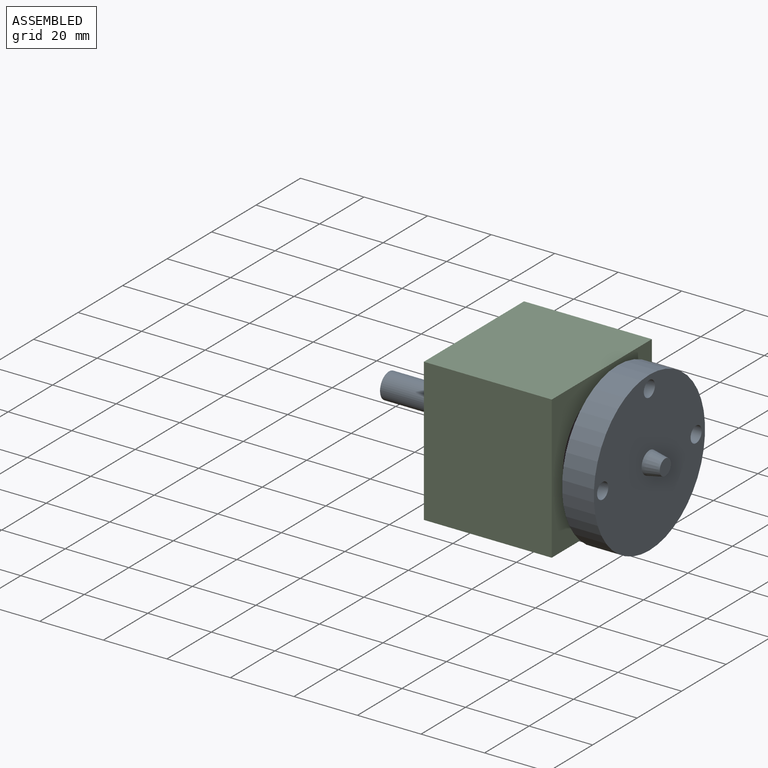
[diagram: assembled view]
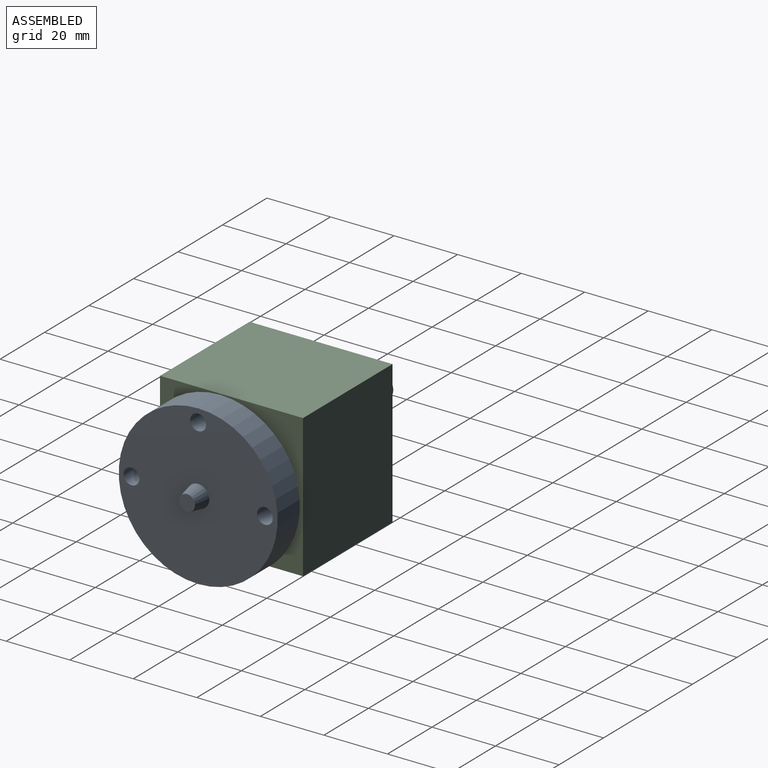
[diagram: assembled view, second angle]
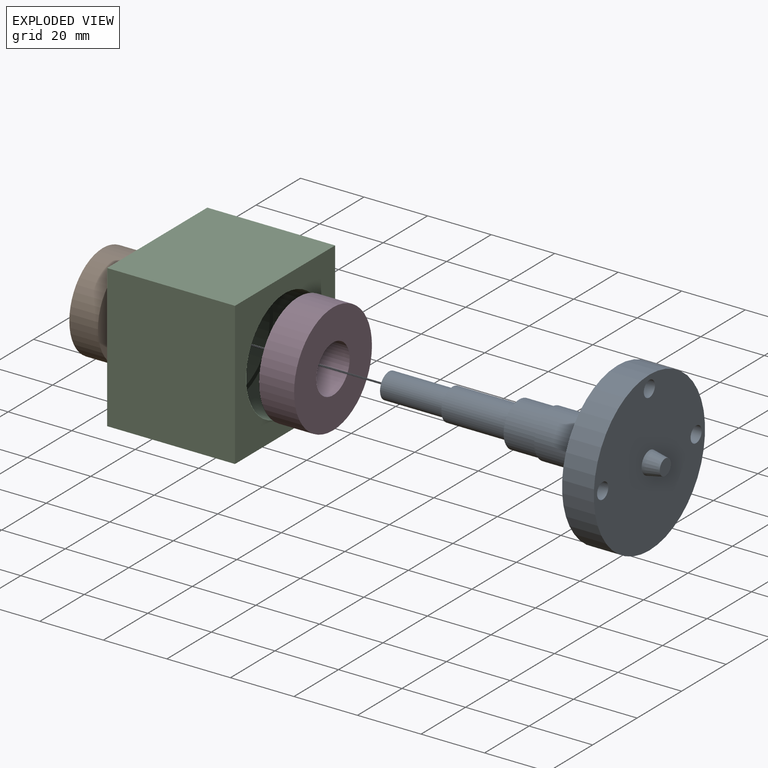
[diagram: exploded view]
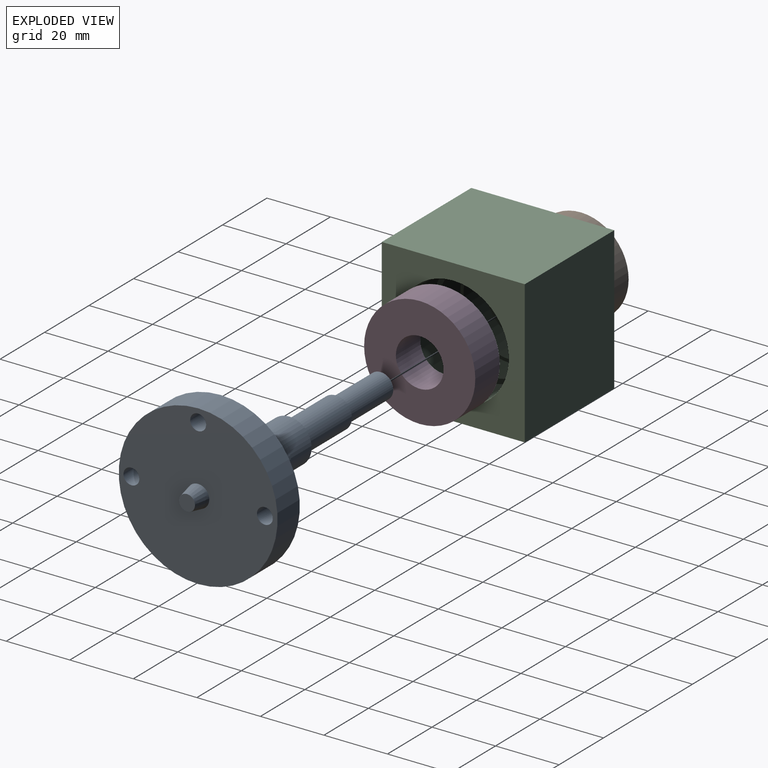
[diagram: exploded view, second angle]
ASSEMBLY  parts=4 mates=3
PART A: 18 faces, bbox 87x50x50 mm
  f0: plane 5x5mm, normal (1,0,0), area 19.6mm2, adj f1
  f1: cone r=3.5mm half-angle=11.3deg, axis (-1,0,0), area 96.1mm2, adj f0,f2
  f2: plane 50x50mm, normal (1,0,0), area 1866.1mm2, adj f1,f3,f15,f16,f17
  f3: cylinder r=25mm len=50mm, axis (-1,0,0), area 1570.8mm2, adj f2,f4
  f4: plane 50x50mm, normal (-1,0,0), area 1677.6mm2, adj f3,f5,f15,f16,f17
  f5: cylinder r=8.5mm len=17mm, axis (-1,0,0), area 534.1mm2, adj f4,f6
  f6: plane 17x17mm, normal (-1,0,0), area 50.3mm2, adj f5,f7
  f7: cylinder r=7.5mm len=15mm, axis (-1,0,0), area 518.4mm2, adj f6,f8
  f8: plane 15x15mm, normal (-1,0,0), area 22.8mm2, adj f7,f9
  f9: cylinder r=7mm len=14mm, axis (-1,0,0), area 439.8mm2, adj f8,f10
  f10: plane 14x14mm, normal (-1,0,0), area 75.4mm2, adj f9,f11
  f11: cylinder r=5mm len=21mm, axis (-1,0,0), area 659.7mm2, adj f10,f12
  f12: plane 10x10mm, normal (-1,0,0), area 28.3mm2, adj f11,f13
  f13: cylinder r=4mm len=20mm, axis (-1,0,0), area 502.7mm2, adj f12,f14
  f14: plane 8x8mm, normal (-1,0,0), area 50.3mm2, adj f13
  f15: cylinder r=2.5mm len=10mm, axis (1,0,0), area 157.1mm2, adj f2,f4
  f16: cylinder r=2.5mm len=10mm, axis (1,0,0), area 157.1mm2, adj f2,f4
  f17: cylinder r=2.5mm len=10mm, axis (1,0,0), area 157.1mm2, adj f2,f4
PART B: 4 faces, bbox 30x9x30 mm
  f0: cylinder r=5mm len=10mm, axis (0,1,0), area 282.7mm2, adj f2,f3
  f1: cylinder r=15mm len=30mm, axis (0,1,0), area 848.2mm2, adj f2,f3
  f2: plane 30x30mm, normal (0,-1,0), area 628.3mm2, adj f0,f1
  f3: plane 30x30mm, normal (0,1,0), area 628.3mm2, adj f0,f1
PART C: 13 faces, bbox 40.2x45x45 mm
  f0: plane 45x45mm, normal (1,0,0), area 1062.9mm2, adj f1,f3,f4,f5,f6
  f1: plane 45x40.24mm, normal (0,0,1), area 1810.7mm2, adj f0,f2,f4,f5
  f2: plane 45x45mm, normal (-1,0,0), area 1494.1mm2, adj f1,f3,f4,f5,f12
  f3: plane 45x40.24mm, normal (0,0,-1), area 1810.7mm2, adj f0,f2,f4,f5
  f4: plane 45x40.24mm, normal (0,-1,0), area 1810.7mm2, adj f0,f1,f2,f3
  f5: plane 45x40.24mm, normal (0,1,0), area 1810.7mm2, adj f0,f1,f2,f3
  f6: cylinder r=17.5mm len=35mm, axis (1,0,0), area 1759.3mm2, adj f0,f7
  f7: plane 35x35mm, normal (1,0,0), area 157.9mm2, adj f6,f8
  f8: cylinder r=16mm len=32mm, axis (1,0,0), area 1005.3mm2, adj f7,f9
  f9: plane 32x32mm, normal (1,0,0), area 97.4mm2, adj f8,f10
  f10: cylinder r=15mm len=30mm, axis (1,0,0), area 848.2mm2, adj f9,f11
  f11: plane 30x30mm, normal (1,0,0), area 175.9mm2, adj f10,f12
  f12: cylinder r=13mm len=26mm, axis (1,0,0), area 427.8mm2, adj f2,f11
PART D: 4 faces, bbox 35x11x35 mm
  f0: cylinder r=7.5mm len=15mm, axis (0,1,0), area 518.4mm2, adj f2,f3
  f1: cylinder r=17.5mm len=35mm, axis (0,1,0), area 1209.5mm2, adj f2,f3
  f2: plane 35x35mm, normal (0,-1,0), area 785.4mm2, adj f0,f1
  f3: plane 35x35mm, normal (0,1,0), area 785.4mm2, adj f0,f1
PLACE A t=(-6.4,-257.38,110.1)mm
PLACE B rot(axis=(0.58,-0.58,0.58),120deg) t=(-63.97,-268.98,137.86)mm
PLACE C t=(-6.4,-257.38,156.81)mm
PLACE D rot(axis=(0.58,-0.58,0.58),120deg) t=(-44.97,-225.76,111.37)mm
MATE revolute D.f0 <-> A.f1  axis (1,0,0) through (-33.97,-257.38,198.26)mm
MATE fastened C.f6 <-> D.f0  axis (1,0,0) through (-44.97,-257.38,198.26)mm
MATE revolute B.f0 <-> A.f1  axis (1,0,0) through (-54.97,-257.38,198.26)mm
